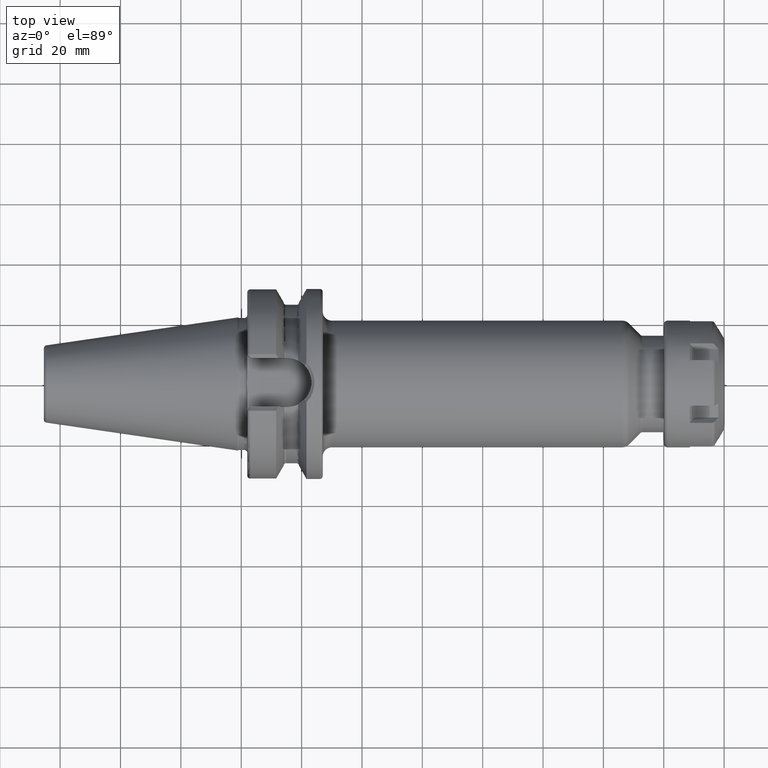
[diagram: clean part render]
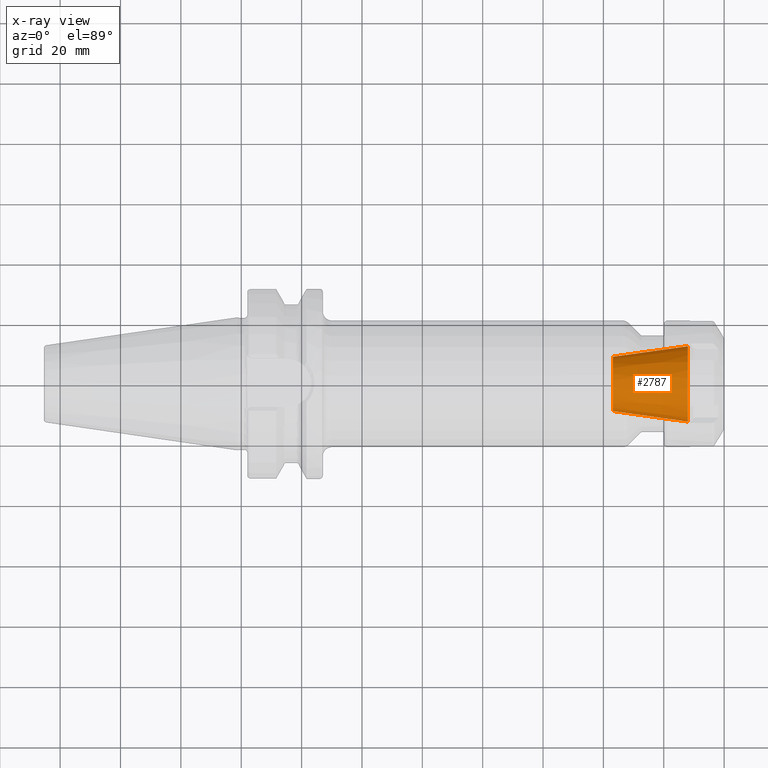
[diagram: x-ray — body ghosted, one internal face saturated and labeled with its STEP entity id]
A machine part, top view, then the same camera in x-ray: the body is ghosted and one INTERNAL B-rep face — a face not visible from any outside direction — is saturated and labeled: STEP entity #2787.
In plain terms, the highlighted conical surface has half-angle 8 deg.
Its self-contained STEP definition (entity closure, byte-faithful):
#960=CARTESIAN_POINT('',(1.48E2,0.E0,0.E0));
#961=DIRECTION('',(1.E0,0.E0,0.E0));
#962=DIRECTION('',(0.E0,1.E0,0.E0));
#963=AXIS2_PLACEMENT_3D('',#960,#961,#962);
#970=DIRECTION('',(-9.902680687416E-1,1.391731009601E-1,0.E0));
#971=VECTOR('',#970,2.514853787015E1);
#972=CARTESIAN_POINT('',(1.48E2,-1.25E1,0.E0));
#973=LINE('',#972,#971);
#974=DIRECTION('',(-9.902680687416E-1,-1.391731009601E-1,0.E0));
#975=VECTOR('',#974,2.514853787015E1);
#976=CARTESIAN_POINT('',(1.48E2,1.25E1,0.E0));
#977=LINE('',#976,#975);
#991=CARTESIAN_POINT('',(1.230962059717E2,0.E0,0.E0));
#992=DIRECTION('',(1.E0,0.E0,0.E0));
#993=DIRECTION('',(0.E0,1.E0,0.E0));
#994=AXIS2_PLACEMENT_3D('',#991,#992,#993);
#1453=CARTESIAN_POINT('',(1.230962059717E2,9.E0,0.E0));
#1455=VERTEX_POINT('',#1453);
#1457=CARTESIAN_POINT('',(1.230962059717E2,-9.E0,0.E0));
#1459=VERTEX_POINT('',#1457);
#1461=CARTESIAN_POINT('',(1.48E2,1.25E1,0.E0));
#1462=CARTESIAN_POINT('',(1.48E2,-1.25E1,0.E0));
#1463=VERTEX_POINT('',#1461);
#1464=VERTEX_POINT('',#1462);
#2773=CARTESIAN_POINT('',(1.355481029858E2,0.E0,0.E0));
#2774=DIRECTION('',(1.E0,0.E0,0.E0));
#2775=DIRECTION('',(0.E0,-1.E0,0.E0));
#2776=AXIS2_PLACEMENT_3D('',#2773,#2774,#2775);
#2777=CONICAL_SURFACE('',#2776,1.075E1,8.E0);
#2778=ORIENTED_EDGE('',*,*,#2766,.F.);
#2780=ORIENTED_EDGE('',*,*,#2779,.T.);
#2782=ORIENTED_EDGE('',*,*,#2781,.T.);
#2784=ORIENTED_EDGE('',*,*,#2783,.F.);
#2785=EDGE_LOOP('',(#2778,#2780,#2782,#2784));
#2786=FACE_OUTER_BOUND('',#2785,.F.);
#2787=ADVANCED_FACE('',(#2786),#2777,.F.);
#964=CIRCLE('',#963,1.25E1);
#995=CIRCLE('',#994,9.E0);
#2766=EDGE_CURVE('',#1463,#1464,#964,.T.);
#2779=EDGE_CURVE('',#1463,#1455,#977,.T.);
#2781=EDGE_CURVE('',#1455,#1459,#995,.T.);
#2783=EDGE_CURVE('',#1464,#1459,#973,.T.);